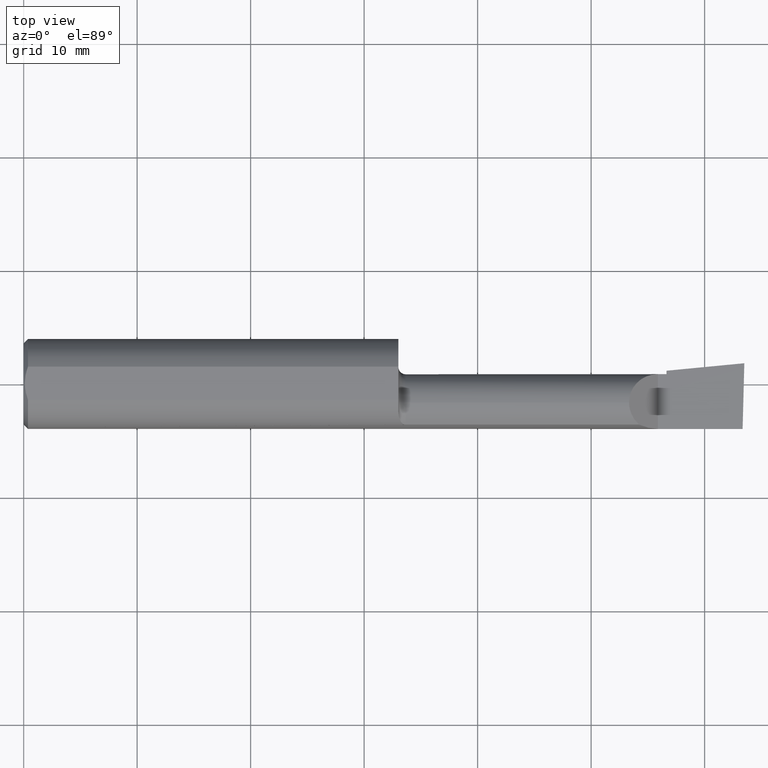
[diagram: clean part render]
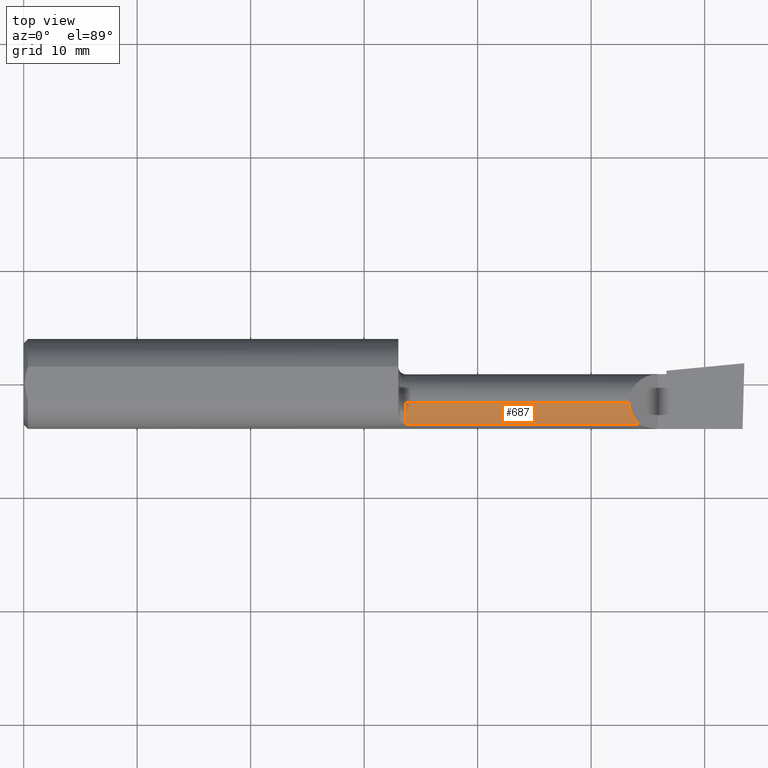
[diagram: same view with one face highlighted and labeled with its STEP entity id]
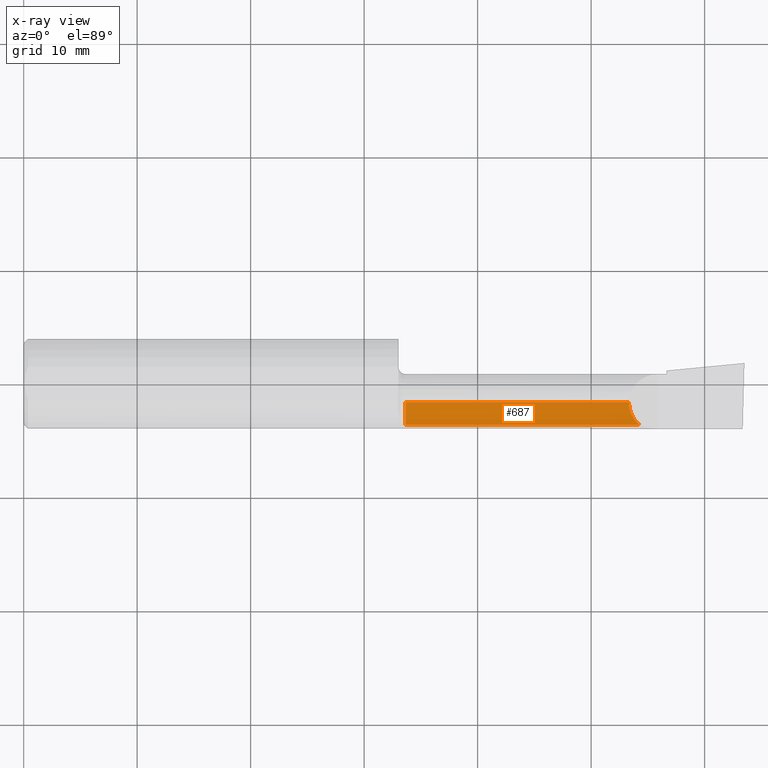
[diagram: x-ray of the same camera — body ghosted, the highlighted face saturated]
A machine part, top view. The second image highlights one B-rep face of the part: STEP entity #687.
The next image is the same camera in x-ray: the body ghosted, the highlighted face saturated — about 0% of this face is hidden behind the body in this view.
In plain terms, the highlighted cylindrical surface (edge-blend (fillet) strip) has radius 2.5375 mm, axis along (-1, -0, -0).
Its self-contained STEP definition (entity closure, byte-faithful):
#7 = VERTEX_POINT ( 'NONE', #640 ) ;
#15 = DIRECTION ( 'NONE',  ( 1.000000000000000000, 0.0000000000000000000, 0.0000000000000000000 ) ) ;
#44 = CARTESIAN_POINT ( 'NONE',  ( 2.100099999999998968, -0.06599999999999998923, 0.09989999999999991942 ) ) ;
#47 = AXIS2_PLACEMENT_3D ( 'NONE', #321, #106, #286 ) ;
#49 = VECTOR ( 'NONE', #196, 39.37007874015748143 ) ;
#78 = CARTESIAN_POINT ( 'NONE',  ( 2.112547924827750112, -0.1227037540429563173, 0.08745207517224930227 ) ) ;
#81 = CARTESIAN_POINT ( 'NONE',  ( 2.135154559332283597, -0.1419939393939393668, 0.06484544066771584514 ) ) ;
#106 = DIRECTION ( 'NONE',  ( -1.000000000000000000, -0.0000000000000000000, -0.0000000000000000000 ) ) ;
#157 = VERTEX_POINT ( 'NONE', #611 ) ;
#183 = CARTESIAN_POINT ( 'NONE',  ( 1.777500000000000080, -0.1419939393939394501, 0.06484544066771573412 ) ) ;
#191 = DIRECTION ( 'NONE',  ( 0.0000000000000000000, 0.0000000000000000000, 1.000000000000000000 ) ) ;
#196 = DIRECTION ( 'NONE',  ( -1.000000000000000000, -0.0000000000000000000, -0.0000000000000000000 ) ) ;
#230 = CYLINDRICAL_SURFACE ( 'NONE', #47, 0.09989999999999991942 ) ;
#266 = ORIENTED_EDGE ( 'NONE', *, *, #705, .T. ) ;
#286 = DIRECTION ( 'NONE',  ( 0.0000000000000000000, 0.0000000000000000000, 1.000000000000000000 ) ) ;
#303 =( BOUNDED_CURVE ( )  B_SPLINE_CURVE ( 3, ( #81, #78, #421, #424 ),
 .UNSPECIFIED., .F., .F. ) 
 B_SPLINE_CURVE_WITH_KNOTS ( ( 4, 4 ),
 ( 5.418794317430680962, 6.283185307179586232 ),
 .UNSPECIFIED. ) 
 CURVE ( )  GEOMETRIC_REPRESENTATION_ITEM ( )  RATIONAL_B_SPLINE_CURVE ( ( 1.000000000000000000, 0.9386988813357772798, 0.9386988813357772798, 1.000000000000000000 ) ) 
 REPRESENTATION_ITEM ( '' )  );
#321 = CARTESIAN_POINT ( 'NONE',  ( 0.0000000000000000000, -0.06599999999999998923, 0.0000000000000000000 ) ) ;
#328 = AXIS2_PLACEMENT_3D ( 'NONE', #495, #521, #191 ) ;
#331 = EDGE_CURVE ( 'NONE', #579, #389, #711, .T. ) ;
#357 = CARTESIAN_POINT ( 'NONE',  ( 0.0000000000000000000, -0.06599999999999998923, 0.09989999999999991942 ) ) ;
#385 = EDGE_LOOP ( 'NONE', ( #642, #414, #609, #266 ) ) ;
#389 = VERTEX_POINT ( 'NONE', #483 ) ;
#391 = FACE_OUTER_BOUND ( 'NONE', #385, .T. ) ;
#409 = CIRCLE ( 'NONE', #328, 0.09989999999999990554 ) ;
#414 = ORIENTED_EDGE ( 'NONE', *, *, #331, .T. ) ;
#421 = CARTESIAN_POINT ( 'NONE',  ( 2.100099999999999412, -0.09571819601686552825, 0.09989999999999994718 ) ) ;
#424 = CARTESIAN_POINT ( 'NONE',  ( 2.100099999999998968, -0.06599999999999998923, 0.09989999999999991942 ) ) ;
#483 = CARTESIAN_POINT ( 'NONE',  ( 1.325000000000000178, -0.06600000000000000311, 0.09989999999999990554 ) ) ;
#495 = CARTESIAN_POINT ( 'NONE',  ( 1.325000000000000178, -0.06599999999999998923, 0.0000000000000000000 ) ) ;
#521 = DIRECTION ( 'NONE',  ( -1.000000000000000000, -0.0000000000000000000, -0.0000000000000000000 ) ) ;
#552 = LINE ( 'NONE', #183, #667 ) ;
#579 = VERTEX_POINT ( 'NONE', #44 ) ;
#603 = EDGE_CURVE ( 'NONE', #157, #389, #409, .T. ) ;
#609 = ORIENTED_EDGE ( 'NONE', *, *, #603, .F. ) ;
#611 = CARTESIAN_POINT ( 'NONE',  ( 1.325000000000000178, -0.1419939393939392280, 0.06484544066771594228 ) ) ;
#640 = CARTESIAN_POINT ( 'NONE',  ( 2.135154559332283597, -0.1419939393939393668, 0.06484544066771584514 ) ) ;
#642 = ORIENTED_EDGE ( 'NONE', *, *, #678, .T. ) ;
#667 = VECTOR ( 'NONE', #15, 39.37007874015748143 ) ;
#678 = EDGE_CURVE ( 'NONE', #7, #579, #303, .T. ) ;
#687 = ADVANCED_FACE ( 'NONE', ( #391 ), #230, .T. ) ;
#705 = EDGE_CURVE ( 'NONE', #157, #7, #552, .T. ) ;
#711 = LINE ( 'NONE', #357, #49 ) ;